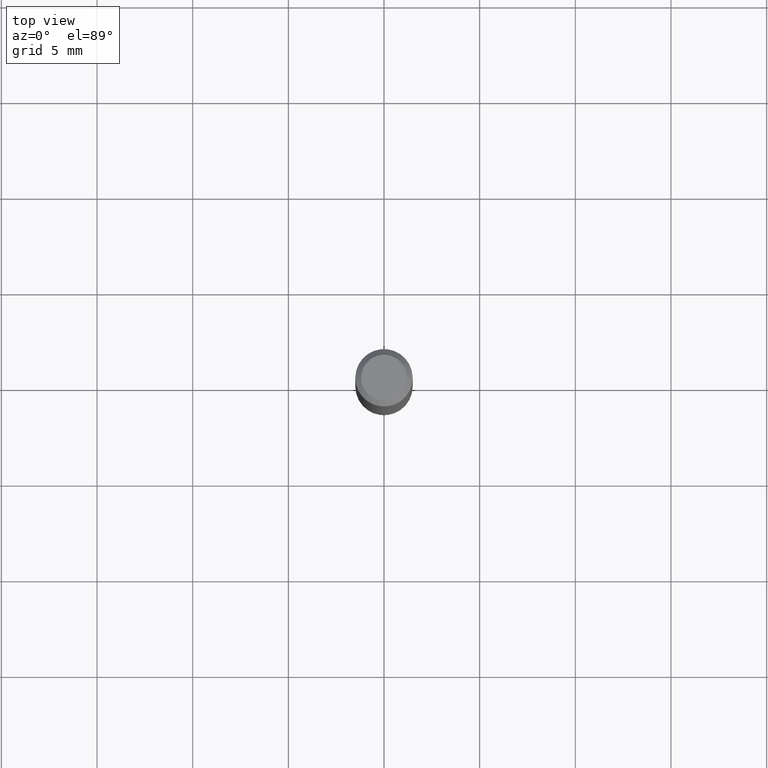
[diagram: clean part render]
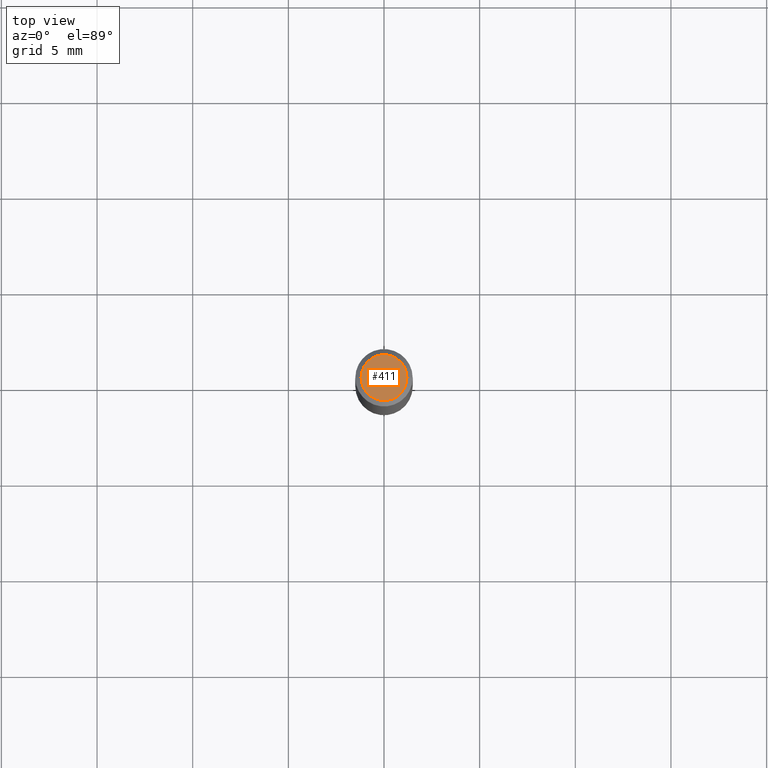
[diagram: same view with one face highlighted and labeled with its STEP entity id]
A machine part, top view. The second image highlights one B-rep face of the part: STEP entity #411.
In plain terms, the highlighted planar face has unit normal (0, -0, -1).
Its self-contained STEP definition (entity closure, byte-faithful):
#12 = AXIS2_PLACEMENT_3D ( 'NONE', #416, #199, #120 ) ;
#22 = EDGE_CURVE ( 'NONE', #312, #328, #224, .T. ) ;
#61 = AXIS2_PLACEMENT_3D ( 'NONE', #215, #110, #220 ) ;
#85 = AXIS2_PLACEMENT_3D ( 'NONE', #126, #263, #276 ) ;
#110 = DIRECTION ( 'NONE',  ( -2.445468806185136597E-29, 3.491481338843145583E-15, 1.000000000000000000 ) ) ;
#120 = DIRECTION ( 'NONE',  ( -1.000000000000000000, 6.982962677686265922E-15, -4.876176775795935793E-29 ) ) ;
#126 = CARTESIAN_POINT ( 'NONE',  ( 8.265746106709734507E-48, -1.180129479067563789E-33, -3.380025165646692144E-19 ) ) ;
#175 = EDGE_LOOP ( 'NONE', ( #441, #407 ) ) ;
#199 = DIRECTION ( 'NONE',  ( 2.438088387897960049E-29, -3.491481338843145188E-15, -1.000000000000000000 ) ) ;
#215 = CARTESIAN_POINT ( 'NONE',  ( 8.265746106709734507E-48, -1.180129479067563789E-33, -3.380025165646692144E-19 ) ) ;
#220 = DIRECTION ( 'NONE',  ( 1.000000000000000000, -6.982962677686266711E-15, 4.876185090822587894E-29 ) ) ;
#224 = CIRCLE ( 'NONE', #85, 0.04724000000000000421 ) ;
#263 = DIRECTION ( 'NONE',  ( -2.445468806185136597E-29, 3.491481338843145583E-15, 1.000000000000000000 ) ) ;
#270 = EDGE_CURVE ( 'NONE', #328, #312, #388, .T. ) ;
#276 = DIRECTION ( 'NONE',  ( 1.000000000000000000, -6.982962677686266711E-15, 4.876185090822587894E-29 ) ) ;
#312 = VERTEX_POINT ( 'NONE', #443 ) ;
#328 = VERTEX_POINT ( 'NONE', #478 ) ;
#388 = CIRCLE ( 'NONE', #61, 0.04724000000000000421 ) ;
#407 = ORIENTED_EDGE ( 'NONE', *, *, #270, .T. ) ;
#411 = ADVANCED_FACE ( 'NONE', ( #458 ), #455, .F. ) ;
#416 = CARTESIAN_POINT ( 'NONE',  ( 4.132873053354867254E-48, -5.900647395337818946E-34, -1.690012582823346072E-19 ) ) ;
#441 = ORIENTED_EDGE ( 'NONE', *, *, #22, .T. ) ;
#443 = CARTESIAN_POINT ( 'NONE',  ( -0.04724000000000000421, 3.504923541997677355E-16, -3.380025165670481712E-19 ) ) ;
#455 = PLANE ( 'NONE',  #12 ) ;
#458 = FACE_OUTER_BOUND ( 'NONE', #175, .T. ) ;
#478 = CARTESIAN_POINT ( 'NONE',  ( 0.04724000000000000421, -3.852183633974369345E-16, -3.380025165621689721E-19 ) ) ;